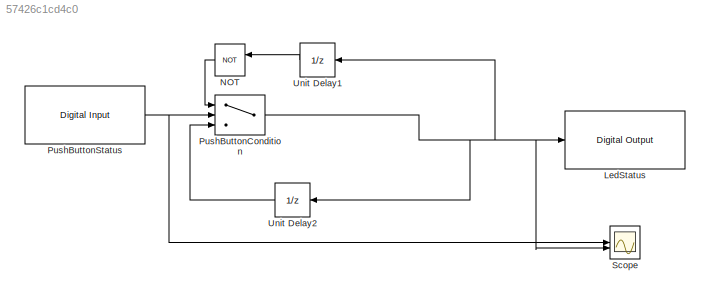
MODEL slx_57426c1cd4c0
KIND model
CONFIG AbsTol = auto
CONFIG EnableMultiTasking = on
CONFIG FixedStep = 1e-3
CONFIG MaxStep = auto
CONFIG MinStep = auto
CONFIG RelTol = 1e-3
CONFIG SampleTimeConstraint = Unconstrained
CONFIG SolverName = FixedStepDiscrete
CONFIG StartTime = 0.0
CONFIG StopTime = inf
BLOCK [Reference] LedStatus  REF=arduinolib/Digital Output
  SourceBlock = arduinolib/Digital Output
  SourceType = Arduino Digital Output
BLOCK [Logic] NOT
  AllPortsSameDT = off
  IconShape = distinctive
  NameLocation = top
  Operator = NOT
  OutDataTypeStr = boolean
BLOCK [Switch] PushButtonCondition
  Criteria = u2 > Threshold
  InputSameDT = off
  SaturateOnIntegerOverflow = off
BLOCK [Reference] PushButtonStatus  REF=arduinolib/Digital Input
  SourceBlock = arduinolib/Digital Input
  SourceType = Arduino Digital Input
BLOCK [Scope] Scope
  Floating = off
  NumInputPorts = 2
  ScopeSpecificationString = Simulink.scopes.TimeScopeBlockCfg('CurrentConfiguration', extmgr.ConfigurationSet(extmgr.Configuration('Core','General UI',true),extmgr.Configuration('Core','Source UI',true),extmgr.Configuration('Sources','WiredSimulink',true),extmgr.Configuration('Visuals','Time Domain',true,'SerializedDisplays',{struct('MinYLimReal','-1.00000','MaxYLimReal','1.00000','YLabelReal','','MinYLimMag','0.00000','MaxY...<+2209ch>
BLOCK [UnitDelay] Unit Delay1
  HasFrameUpgradeWarning = on
  NameLocation = top
  SampleTime = -1
BLOCK [UnitDelay] Unit Delay2
  HasFrameUpgradeWarning = on
  NameLocation = top
  SampleTime = -1
LINE NOT:1 -> PushButtonCondition:1
NET PushButtonCondition:1 -> LedStatus:1, Scope:2, Unit Delay1:1, Unit Delay2:1
NET PushButtonStatus:1 -> PushButtonCondition:2, Scope:1
LINE Unit Delay1:1 -> NOT:1
LINE Unit Delay2:1 -> PushButtonCondition:3
note: NET lines group one-source signal fan-out (src -> all destinations, sorted); 1:1 wires keep LINE
